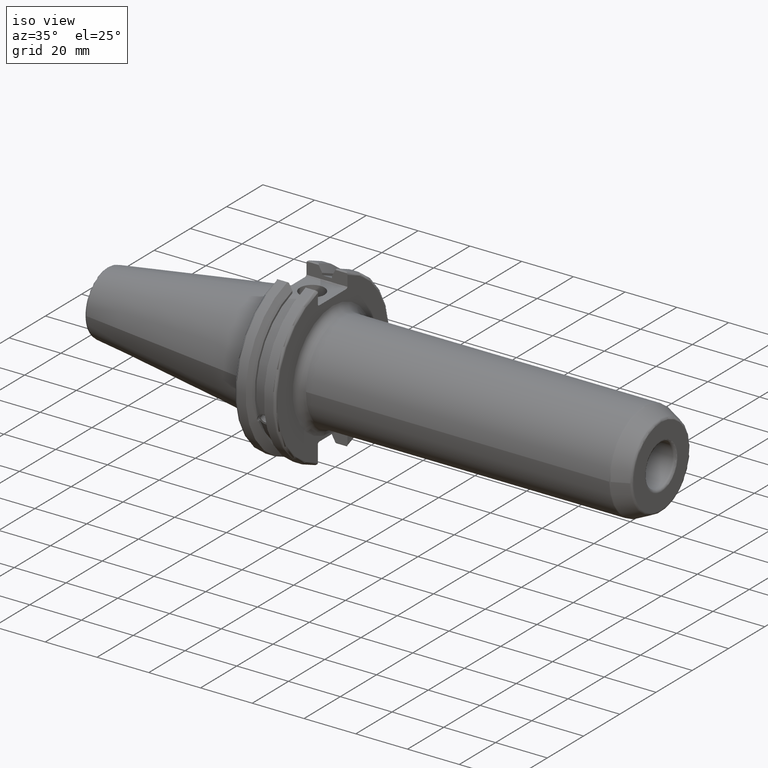
[diagram: clean part render]
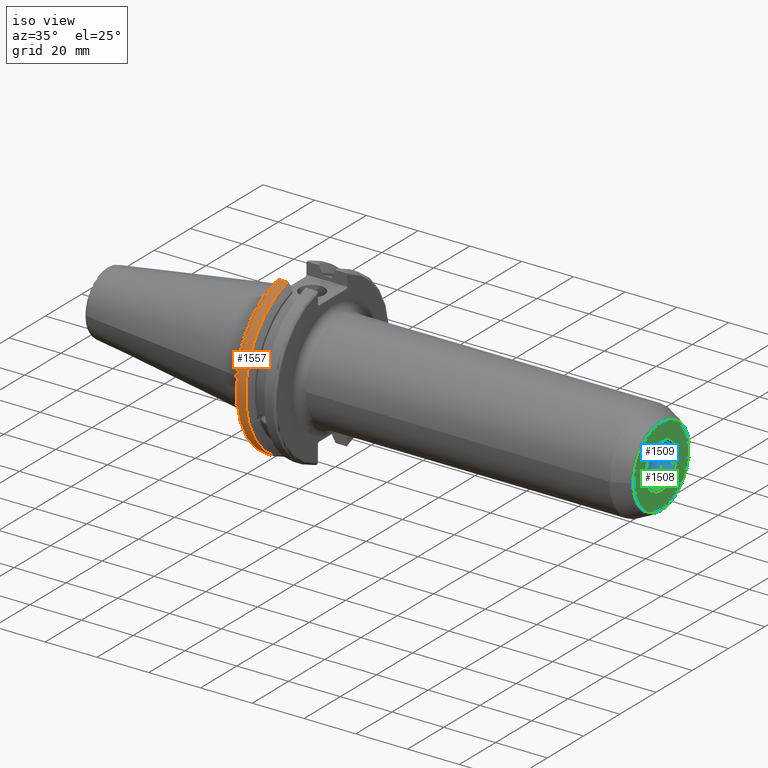
[diagram: same view with three faces highlighted in distinct colors, each labeled with its STEP entity id]
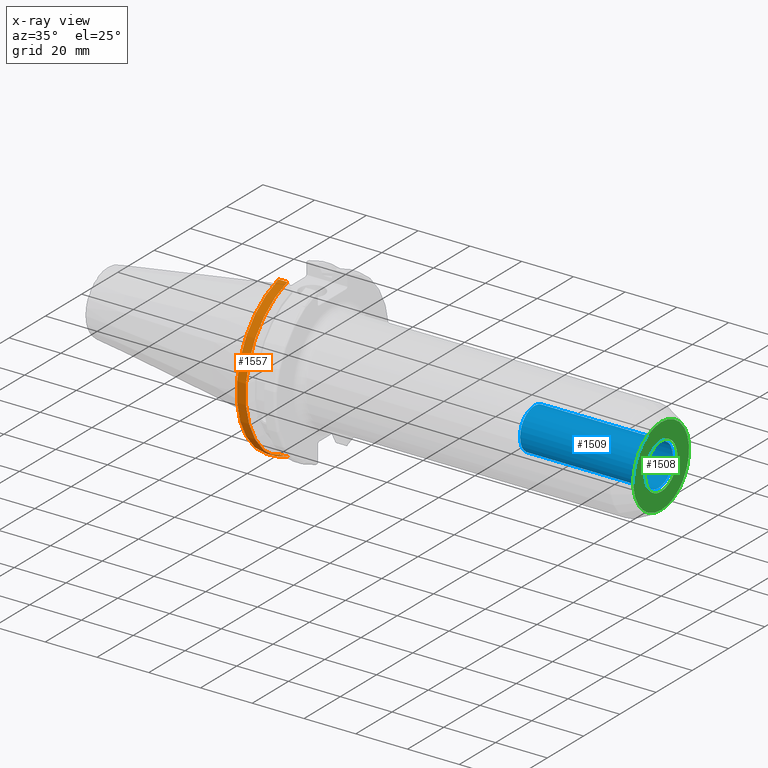
[diagram: x-ray of the same camera — body ghosted, the three highlighted faces saturated]
A machine part, iso view with three faces highlighted in distinct colors.
The next image is the same camera in x-ray (body ghosted, the three faces saturated) — at least one of them is partly hidden behind the body in this view.
Their STEP definitions:

[orange] entity #1557 — the highlighted cylindrical surface (partial cylindrical patch) has radius 31.75 mm, axis along (1, 0, 0).
#134=CYLINDRICAL_SURFACE('',#1742,31.75);
#194=FACE_OUTER_BOUND('',#296,.T.);
#296=EDGE_LOOP('',(#1336,#1337,#1338,#1339));
#390=CIRCLE('',#1740,31.75);
#391=CIRCLE('',#1743,31.75);
#479=LINE('',#2976,#571);
#480=LINE('',#2982,#572);
#571=VECTOR('',#2121,10.);
#572=VECTOR('',#2124,10.);
#763=VERTEX_POINT('',#2955);
#764=VERTEX_POINT('',#2964);
#765=VERTEX_POINT('',#2975);
#766=VERTEX_POINT('',#2981);
#970=EDGE_CURVE('',#763,#764,#390,.T.);
#972=EDGE_CURVE('',#764,#765,#479,.T.);
#974=EDGE_CURVE('',#766,#763,#480,.T.);
#975=EDGE_CURVE('',#765,#766,#391,.T.);
#1336=ORIENTED_EDGE('',*,*,#970,.F.);
#1337=ORIENTED_EDGE('',*,*,#974,.F.);
#1338=ORIENTED_EDGE('',*,*,#975,.F.);
#1339=ORIENTED_EDGE('',*,*,#972,.F.);
#1557=ADVANCED_FACE('',(#194),#134,.T.);
#1740=AXIS2_PLACEMENT_3D('',#2965,#2117,#2118);
#1742=AXIS2_PLACEMENT_3D('',#2980,#2122,#2123);
#1743=AXIS2_PLACEMENT_3D('',#2983,#2125,#2126);
#2117=DIRECTION('center_axis',(-1.,0.,0.));
#2118=DIRECTION('ref_axis',(0.,-1.,1.60812264967664E-16));
#2121=DIRECTION('',(1.,0.,0.));
#2122=DIRECTION('center_axis',(1.,0.,0.));
#2123=DIRECTION('ref_axis',(0.,-1.,1.22464679914735E-16));
#2124=DIRECTION('',(-1.,0.,0.));
#2125=DIRECTION('center_axis',(1.,0.,0.));
#2126=DIRECTION('ref_axis',(0.,0.,-1.));
#2955=CARTESIAN_POINT('',(4.175,-8.67204822802685,-30.5427254764662));
#2964=CARTESIAN_POINT('',(4.175,-8.67204822802685,30.5427254764662));
#2965=CARTESIAN_POINT('Origin',(4.175,0.,0.));
#2975=CARTESIAN_POINT('',(7.60793323092436,-8.67204822802685,30.5427254764662));
#2976=CARTESIAN_POINT('',(5.39146661546218,-8.67204822802685,30.5427254764662));
#2980=CARTESIAN_POINT('Origin',(5.39146661546218,0.,0.));
#2981=CARTESIAN_POINT('',(7.60793323092436,-8.67204822802685,-30.5427254764662));
#2982=CARTESIAN_POINT('',(5.39146661546218,-8.67204822802685,-30.5427254764662));
#2983=CARTESIAN_POINT('Origin',(7.60793323092436,0.,0.));

[blue] entity #1509 — the highlighted cylindrical surface (bore or boss wall) has radius 7.9375 mm, axis along (1, 0, 0).
#50=FACE_BOUND('',#235,.T.);
#115=CYLINDRICAL_SURFACE('',#1625,7.9375);
#146=FACE_OUTER_BOUND('',#234,.T.);
#234=EDGE_LOOP('',(#1038,#1039,#1040,#1041,#1042));
#235=EDGE_LOOP('',(#1043,#1044));
#335=CIRCLE('',#1619,7.9375);
#336=CIRCLE('',#1620,7.9375);
#340=CIRCLE('',#1626,7.9375);
#412=LINE('',#2349,#504);
#504=VECTOR('',#1822,7.9375);
#596=B_SPLINE_CURVE_WITH_KNOTS('',3,(#2300,#2301,#2302,#2303,#2304,#2305,
#2306,#2307,#2308,#2309),.UNSPECIFIED.,.F.,.F.,(4,2,2,2,4),(0.,0.225884839831721,
0.451769679663443,0.67407154991177,0.896373420160097),.UNSPECIFIED.);
#597=B_SPLINE_CURVE_WITH_KNOTS('',3,(#2310,#2311,#2312,#2313,#2314,#2315,
#2316,#2317,#2318,#2319,#2320,#2321,#2322,#2323,#2324,#2325,#2326,#2327,
#2328,#2329,#2330,#2331,#2332,#2333,#2334,#2335),.UNSPECIFIED.,.F.,.F.,
(4,2,2,2,2,2,2,2,2,2,2,2,4),(0.896373420160097,1.11867529040842,1.34097716065675,
1.56686200048847,1.79274684032019,2.01863168015191,2.24451651998364,2.46681839023196,
2.68912026048029,2.91142213072862,3.13372400097694,3.35960884080867,3.58549368064039),
 .UNSPECIFIED.);
#631=VERTEX_POINT('',#2297);
#632=VERTEX_POINT('',#2299);
#633=VERTEX_POINT('',#2337);
#634=VERTEX_POINT('',#2338);
#637=VERTEX_POINT('',#2348);
#790=EDGE_CURVE('',#632,#631,#596,.T.);
#791=EDGE_CURVE('',#631,#632,#597,.T.);
#792=EDGE_CURVE('',#633,#634,#335,.T.);
#793=EDGE_CURVE('',#634,#633,#336,.T.);
#797=EDGE_CURVE('',#634,#637,#412,.T.);
#798=EDGE_CURVE('',#637,#637,#340,.T.);
#1038=ORIENTED_EDGE('',*,*,#792,.F.);
#1039=ORIENTED_EDGE('',*,*,#793,.F.);
#1040=ORIENTED_EDGE('',*,*,#797,.T.);
#1041=ORIENTED_EDGE('',*,*,#798,.F.);
#1042=ORIENTED_EDGE('',*,*,#797,.F.);
#1043=ORIENTED_EDGE('',*,*,#790,.T.);
#1044=ORIENTED_EDGE('',*,*,#791,.T.);
#1509=ADVANCED_FACE('',(#146,#50),#115,.F.);
#1619=AXIS2_PLACEMENT_3D('',#2339,#1808,#1809);
#1620=AXIS2_PLACEMENT_3D('',#2340,#1810,#1811);
#1625=AXIS2_PLACEMENT_3D('',#2347,#1820,#1821);
#1626=AXIS2_PLACEMENT_3D('',#2350,#1823,#1824);
#1808=DIRECTION('center_axis',(-1.,0.,0.));
#1809=DIRECTION('ref_axis',(0.,-1.,1.83697019872103E-16));
#1810=DIRECTION('center_axis',(-1.,0.,0.));
#1811=DIRECTION('ref_axis',(0.,-1.,1.83697019872103E-16));
#1820=DIRECTION('center_axis',(1.,0.,0.));
#1821=DIRECTION('ref_axis',(0.,1.,0.));
#1822=DIRECTION('',(-1.,0.,0.));
#1823=DIRECTION('center_axis',(1.,0.,0.));
#1824=DIRECTION('ref_axis',(0.,0.,-1.));
#2297=CARTESIAN_POINT('',(129.2642,7.9375,-7.28471384701419E-16));
#2299=CARTESIAN_POINT('',(123.6,5.5606424637806,5.6642));
#2300=CARTESIAN_POINT('Ctrl Pts',(123.6,5.5606424637806,5.6642));
#2301=CARTESIAN_POINT('Ctrl Pts',(124.352949466106,5.5606424637806,5.6642));
#2302=CARTESIAN_POINT('Ctrl Pts',(125.117791917979,5.72837393024956,5.50810495630868));
#2303=CARTESIAN_POINT('Ctrl Pts',(126.495891662755,6.23672453115193,4.92511332997724));
#2304=CARTESIAN_POINT('Ctrl Pts',(127.113142282466,6.56532564677136,4.49724617752757));
#2305=CARTESIAN_POINT('Ctrl Pts',(128.089441283836,7.13592546644233,3.52094717615781));
#2306=CARTESIAN_POINT('Ctrl Pts',(128.522215337718,7.42313747945352,2.90239775841698));
#2307=CARTESIAN_POINT('Ctrl Pts',(129.110223558493,7.82542834698346,1.51312771844524));
#2308=CARTESIAN_POINT('Ctrl Pts',(129.2642,7.9375,0.74100623416109));
#2309=CARTESIAN_POINT('Ctrl Pts',(129.2642,7.9375,4.16333634234434E-16));
#2310=CARTESIAN_POINT('Ctrl Pts',(129.2642,7.9375,-6.93889390390723E-16));
#2311=CARTESIAN_POINT('Ctrl Pts',(129.2642,7.9375,-0.74100623416109));
#2312=CARTESIAN_POINT('Ctrl Pts',(129.110223558493,7.82542834698346,-1.51312771844524));
#2313=CARTESIAN_POINT('Ctrl Pts',(128.522215337718,7.42313747945352,-2.90239775841698));
#2314=CARTESIAN_POINT('Ctrl Pts',(128.089441283836,7.13592546644233,-3.52094717615781));
#2315=CARTESIAN_POINT('Ctrl Pts',(127.113142282466,6.56532564677136,-4.49724617752757));
#2316=CARTESIAN_POINT('Ctrl Pts',(126.495891662755,6.23672453115193,-4.92511332997724));
#2317=CARTESIAN_POINT('Ctrl Pts',(125.117791917979,5.72837393024956,-5.50810495630868));
#2318=CARTESIAN_POINT('Ctrl Pts',(124.352949466106,5.5606424637806,-5.6642));
#2319=CARTESIAN_POINT('Ctrl Pts',(122.847050533894,5.5606424637806,-5.6642));
#2320=CARTESIAN_POINT('Ctrl Pts',(122.082208082021,5.72837393024957,-5.50810495630867));
#2321=CARTESIAN_POINT('Ctrl Pts',(120.704108337245,6.23672453115194,-4.92511332997723));
#2322=CARTESIAN_POINT('Ctrl Pts',(120.086857717534,6.56532564677136,-4.49724617752757));
#2323=CARTESIAN_POINT('Ctrl Pts',(119.110558716164,7.13592546644233,-3.52094717615781));
#2324=CARTESIAN_POINT('Ctrl Pts',(118.677784662282,7.42313747945352,-2.90239775841698));
#2325=CARTESIAN_POINT('Ctrl Pts',(118.089776441507,7.82542834698346,-1.51312771844524));
#2326=CARTESIAN_POINT('Ctrl Pts',(117.9358,7.9375,-0.741006234161089));
#2327=CARTESIAN_POINT('Ctrl Pts',(117.9358,7.9375,0.741006234161089));
#2328=CARTESIAN_POINT('Ctrl Pts',(118.089776441507,7.82542834698346,1.51312771844524));
#2329=CARTESIAN_POINT('Ctrl Pts',(118.677784662282,7.42313747945352,2.90239775841698));
#2330=CARTESIAN_POINT('Ctrl Pts',(119.110558716164,7.13592546644233,3.52094717615781));
#2331=CARTESIAN_POINT('Ctrl Pts',(120.086857717534,6.56532564677136,4.49724617752757));
#2332=CARTESIAN_POINT('Ctrl Pts',(120.704108337245,6.23672453115194,4.92511332997723));
#2333=CARTESIAN_POINT('Ctrl Pts',(122.082208082021,5.72837393024957,5.50810495630867));
#2334=CARTESIAN_POINT('Ctrl Pts',(122.847050533894,5.5606424637806,5.6642));
#2335=CARTESIAN_POINT('Ctrl Pts',(123.6,5.5606424637806,5.6642));
#2337=CARTESIAN_POINT('',(145.,-9.72063396823212E-16,7.9375));
#2338=CARTESIAN_POINT('',(145.,-7.9375,-9.72063396823212E-16));
#2339=CARTESIAN_POINT('Origin',(145.,0.,0.));
#2340=CARTESIAN_POINT('Origin',(145.,0.,0.));
#2347=CARTESIAN_POINT('Origin',(121.5,0.,0.));
#2348=CARTESIAN_POINT('',(97.,-7.9375,-9.72063396823212E-16));
#2349=CARTESIAN_POINT('',(121.5,-7.9375,-9.72063396823212E-16));
#2350=CARTESIAN_POINT('Origin',(97.,0.,0.));

[green] entity #1508 — the highlighted planar face has unit normal (1, 0, 0).
#49=FACE_BOUND('',#233,.T.);
#67=PLANE('',#1623);
#145=FACE_OUTER_BOUND('',#232,.T.);
#232=EDGE_LOOP('',(#1036));
#233=EDGE_LOOP('',(#1037));
#338=CIRCLE('',#1622,8.9375);
#339=CIRCLE('',#1624,15.3629297391925);
#635=VERTEX_POINT('',#2341);
#636=VERTEX_POINT('',#2345);
#795=EDGE_CURVE('',#635,#635,#338,.T.);
#796=EDGE_CURVE('',#636,#636,#339,.T.);
#1036=ORIENTED_EDGE('',*,*,#796,.F.);
#1037=ORIENTED_EDGE('',*,*,#795,.F.);
#1508=ADVANCED_FACE('',(#145,#49),#67,.T.);
#1622=AXIS2_PLACEMENT_3D('',#2343,#1814,#1815);
#1623=AXIS2_PLACEMENT_3D('',#2344,#1816,#1817);
#1624=AXIS2_PLACEMENT_3D('',#2346,#1818,#1819);
#1814=DIRECTION('center_axis',(1.,0.,0.));
#1815=DIRECTION('ref_axis',(0.,-1.,1.83697019872103E-16));
#1816=DIRECTION('center_axis',(1.,0.,0.));
#1817=DIRECTION('ref_axis',(0.,0.,-1.));
#1818=DIRECTION('center_axis',(-1.,0.,0.));
#1819=DIRECTION('ref_axis',(0.,-1.,1.83697019872103E-16));
#2341=CARTESIAN_POINT('',(146.,-1.09452807673795E-15,8.9375));
#2343=CARTESIAN_POINT('Origin',(146.,0.,0.));
#2344=CARTESIAN_POINT('Origin',(146.,7.93750000000001,0.));
#2345=CARTESIAN_POINT('',(146.,-1.88141627306278E-15,15.3629297391925));
#2346=CARTESIAN_POINT('Origin',(146.,0.,0.));